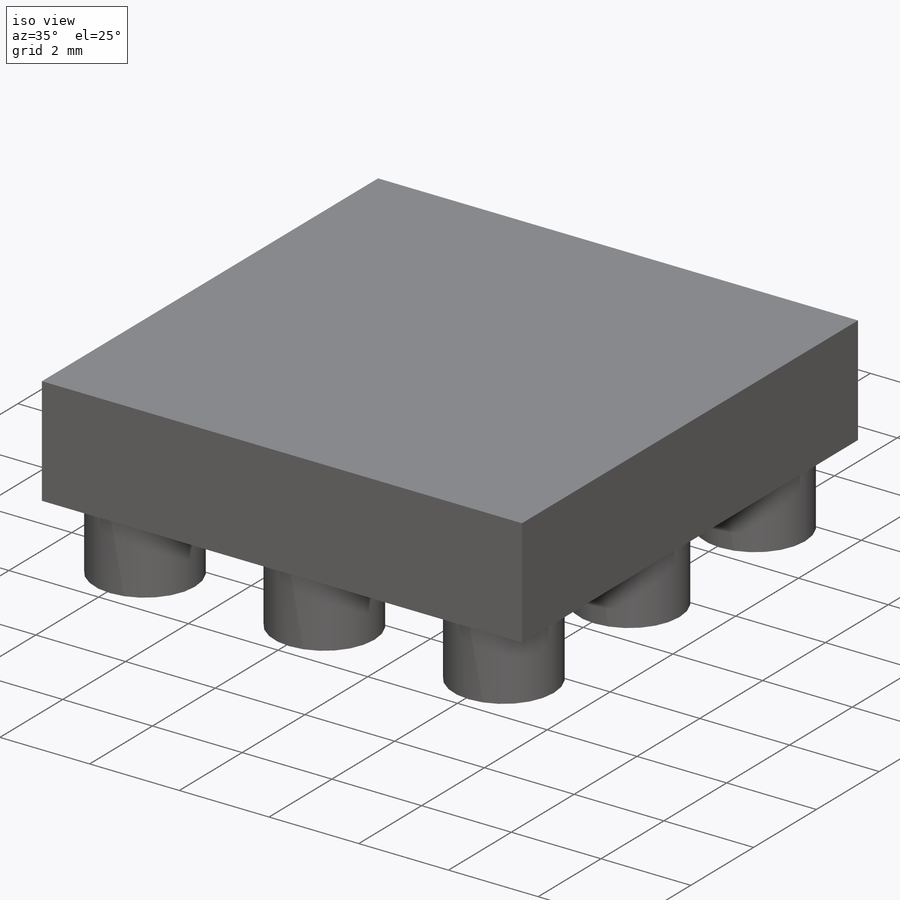
[diagram: iso view]
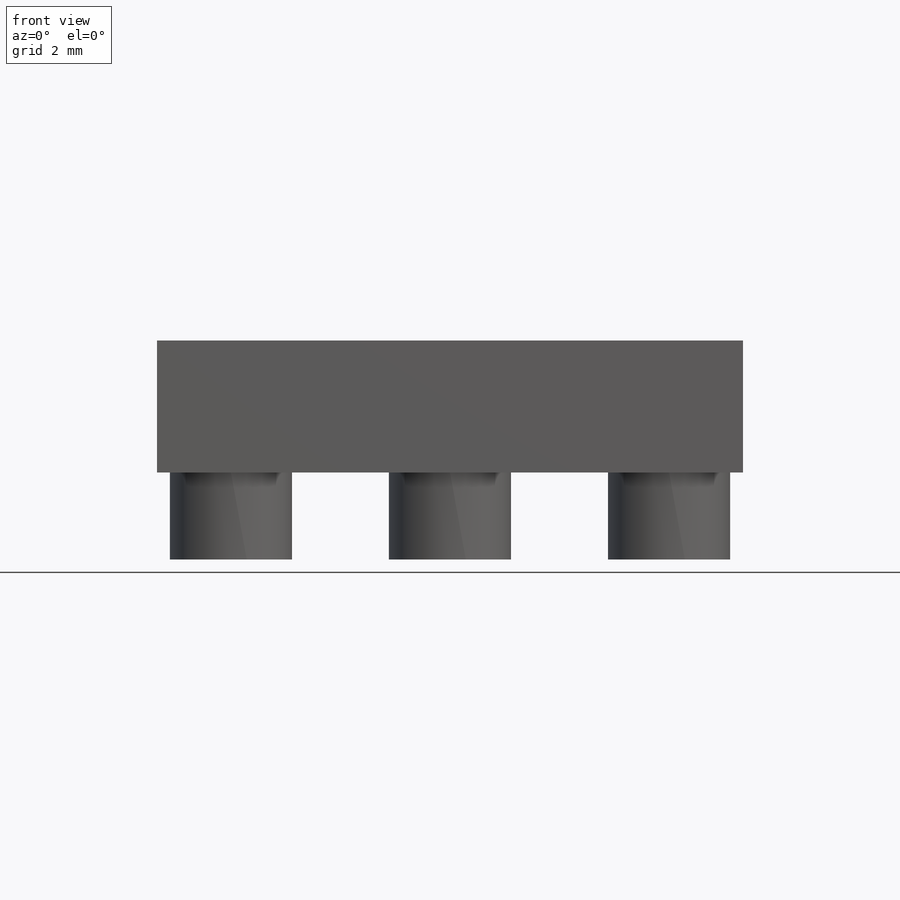
[diagram: front view]
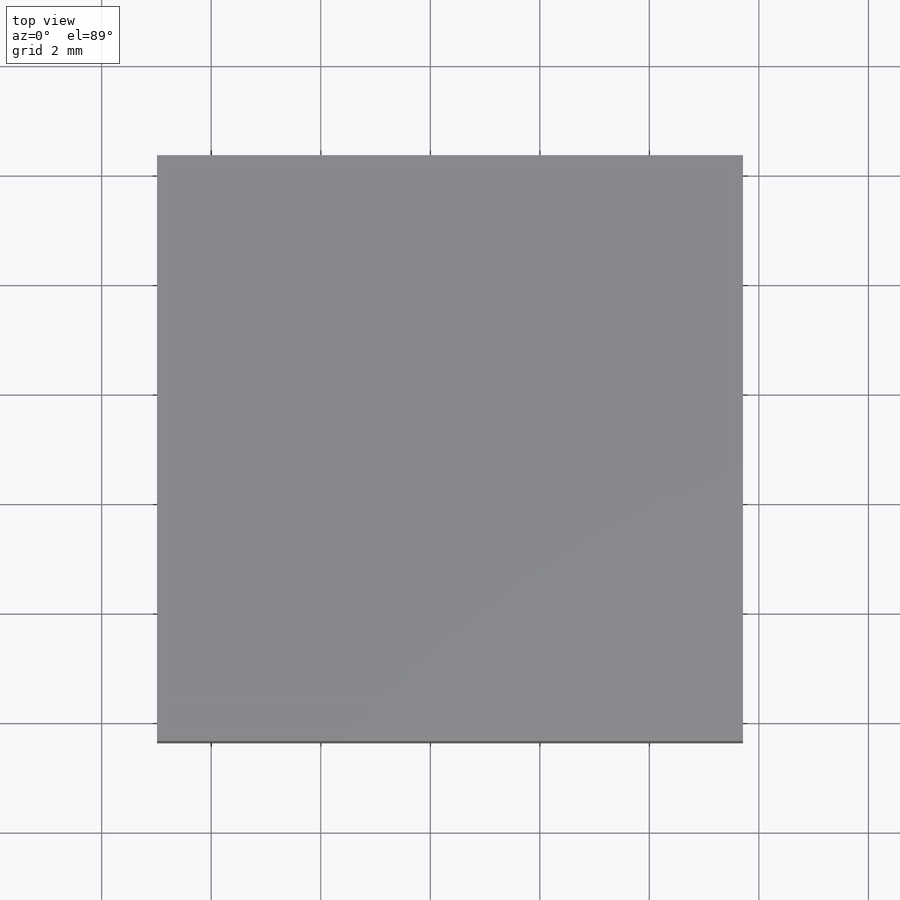
[diagram: top view]
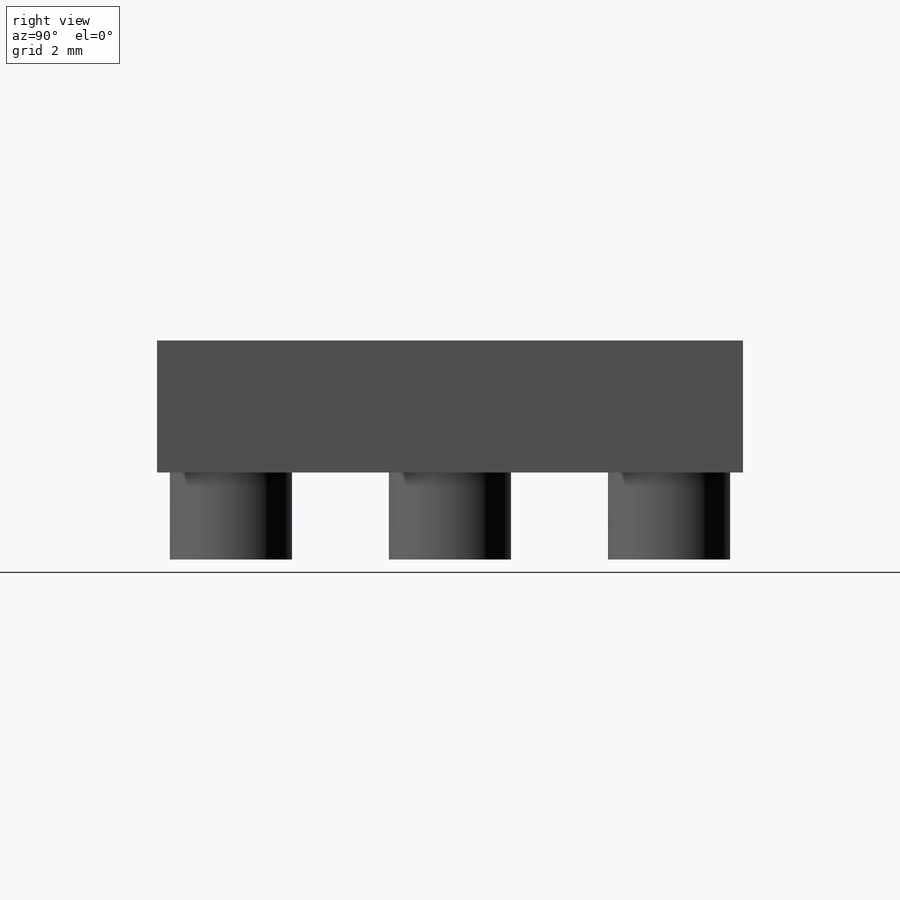
[diagram: right view]
SOLIDWORKS PART (.sldprt)
format: sldprt  version: not decoded by parser v0  size: 218,112 bytes
history: native  units: mm
features: sketch x5, extrude x5, material x1, plane x1 (+13 scaffold rows collapsed; 2 parser-record rows omitted)
feature tree (27):
  scaffold x13  (default folders/planes/origin — collapsed)
  material  "Material <not specified>"
  plane  "Plane2"  Offset=1.5875mm
  sketch  "Sketch3"
  extrude  "Boss-Extrude2"  Depth=2.41mm
  sketch  "Sketch5"  dims[D3=1.35mm D1=3.0 D2=3.0]
  extrude  "Boss-Extrude3"  Depth=1.5875mm
  parser-record x2  (decoder bookkeeping rows leaked as tree rows — omitted from the tree; the rows remain in map.json)
  sketch  "Sketch6"
  extrude  "Boss-Extrude4"  Depth=1.5875mm
  sketch  "Sketch7"
  extrude  "Boss-Extrude5"  Depth=5.79mm
  sketch  "Sketch8"
  extrude  "Boss-Extrude6"  Depth=7.51mm ModelUUID=0mm UUID=0mm
decode coverage: 6 of 10 modeling features carry decoded parameters
note: suppression state not decoded; provenance and decode notes live in map.json
